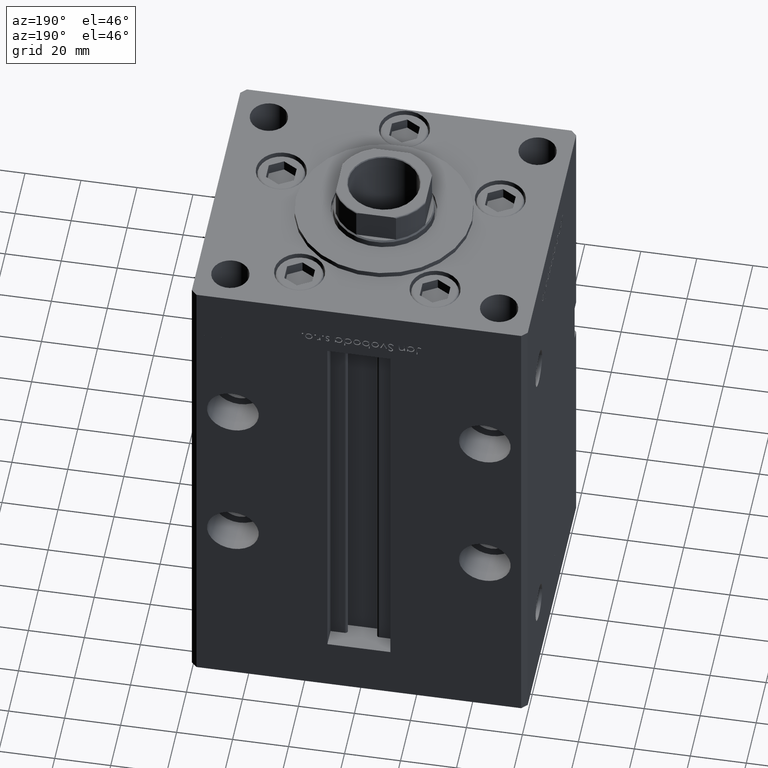
[diagram: clean part render]
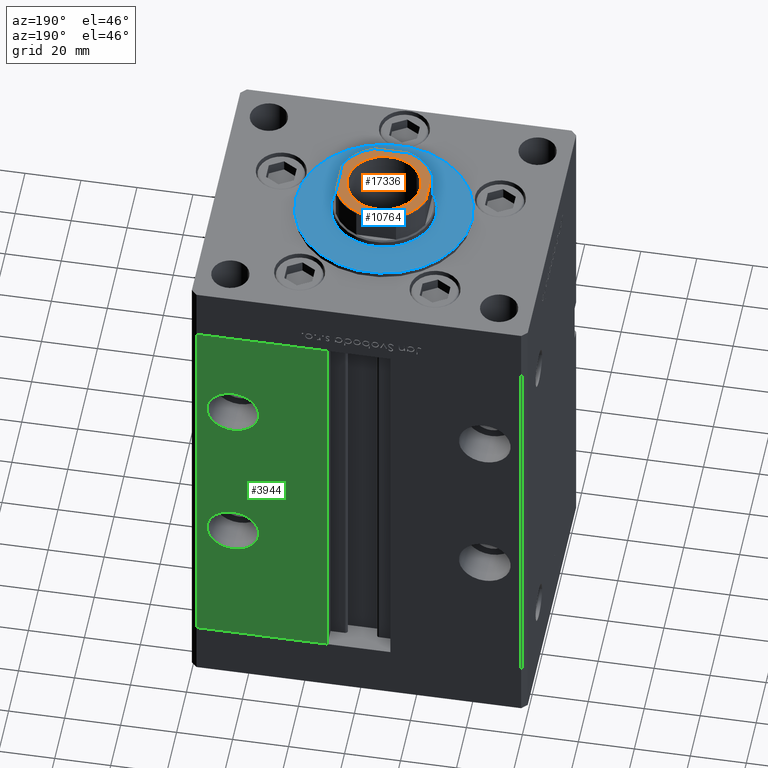
[diagram: same view with three faces highlighted in distinct colors, each labeled with its STEP entity id]
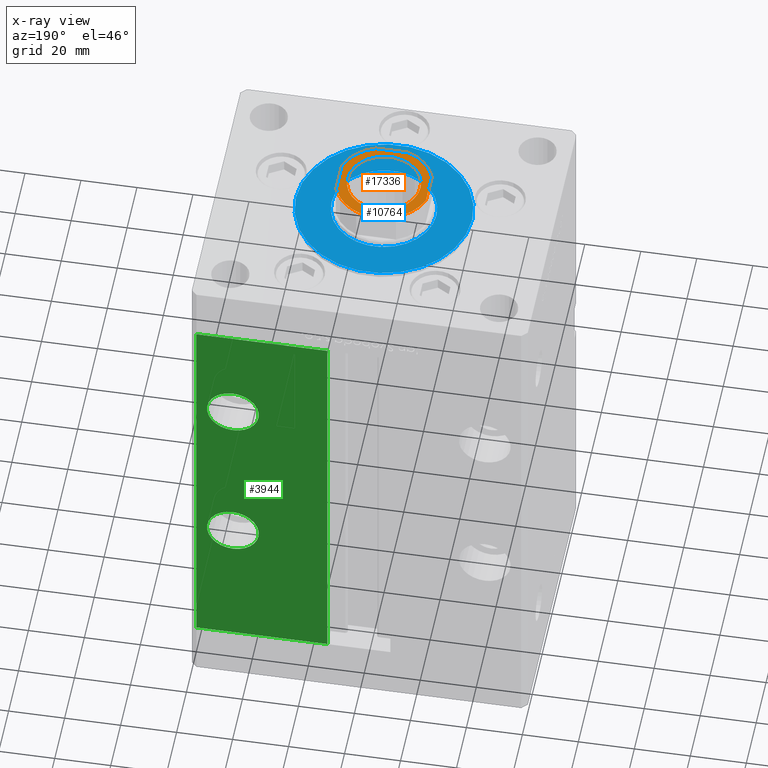
[diagram: x-ray of the same camera — body ghosted, the three highlighted faces saturated]
A machine part, auxiliary view with three faces highlighted in distinct colors.
The next image is the same camera in x-ray (body ghosted, the three faces saturated) — at least one of them is partly hidden behind the body in this view.
Their STEP definitions:

[orange] entity #17336 — the highlighted planar face has unit normal (0, 0, 1).
#196 = CIRCLE ( 'NONE', #37033, 17.00000000000000000 ) ;
#540 = CARTESIAN_POINT ( 'NONE',  ( 5.744562646538033057, 16.00000000000000000, 169.2500000000000000 ) ) ;
#622 = DIRECTION ( 'NONE',  ( 1.000000000000000000, 0.000000000000000000, 0.000000000000000000 ) ) ;
#655 = ORIENTED_EDGE ( 'NONE', *, *, #40840, .T. ) ;
#787 = DIRECTION ( 'NONE',  ( 1.000000000000000000, 0.000000000000000000, 0.000000000000000000 ) ) ;
#1505 = DIRECTION ( 'NONE',  ( 1.000000000000000000, 0.000000000000000000, 0.000000000000000000 ) ) ;
#2196 = ORIENTED_EDGE ( 'NONE', *, *, #26770, .T. ) ;
#2856 = DIRECTION ( 'NONE',  ( 0.000000000000000000, -0.000000000000000000, -1.000000000000000000 ) ) ;
#2902 = EDGE_CURVE ( 'NONE', #33235, #32653, #19603, .T. ) ;
#3002 = DIRECTION ( 'NONE',  ( -0.000000000000000000, 0.000000000000000000, 1.000000000000000000 ) ) ;
#3449 = CIRCLE ( 'NONE', #42868, 17.00000000000000000 ) ;
#4014 = DIRECTION ( 'NONE',  ( -1.000000000000000000, -1.084202172485504434E-16, -0.000000000000000000 ) ) ;
#4253 = CIRCLE ( 'NONE', #34254, 17.00000000000000000 ) ;
#5086 = VECTOR ( 'NONE', #13230, 1000.000000000000000 ) ;
#5416 = VERTEX_POINT ( 'NONE', #51565 ) ;
#7173 = DIRECTION ( 'NONE',  ( 1.084202172485504434E-16, -1.000000000000000000, 0.000000000000000000 ) ) ;
#7435 = EDGE_LOOP ( 'NONE', ( #47535, #46793, #11375, #43089, #49262, #48628, #2196, #18644 ) ) ;
#7758 = CARTESIAN_POINT ( 'NONE',  ( -16.00000000000000000, 15.99999999999999645, 169.2500000000000000 ) ) ;
#7982 = CIRCLE ( 'NONE', #18302, 13.05000000000003268 ) ;
#8025 = LINE ( 'NONE', #7758, #36845 ) ;
#8161 = EDGE_CURVE ( 'NONE', #32653, #45530, #24909, .T. ) ;
#8657 = CARTESIAN_POINT ( 'NONE',  ( -15.99999999999999645, -16.00000000000000355, 169.2500000000000000 ) ) ;
#9414 = CARTESIAN_POINT ( 'NONE',  ( 13.05000000000003268, 0.000000000000000000, 169.2500000000000000 ) ) ;
#9987 = CARTESIAN_POINT ( 'NONE',  ( 16.00000000000000355, -5.744562646538033057, 169.2500000000000000 ) ) ;
#10069 = DIRECTION ( 'NONE',  ( -0.000000000000000000, 0.000000000000000000, 1.000000000000000000 ) ) ;
#10673 = PLANE ( 'NONE',  #52886 ) ;
#11375 = ORIENTED_EDGE ( 'NONE', *, *, #25711, .T. ) ;
#13230 = DIRECTION ( 'NONE',  ( 1.000000000000000000, 1.084202172485504434E-16, 0.000000000000000000 ) ) ;
#15944 = VERTEX_POINT ( 'NONE', #16254 ) ;
#16254 = CARTESIAN_POINT ( 'NONE',  ( -16.00000000000000000, -5.744562646538033945, 169.2500000000000000 ) ) ;
#17336 = ADVANCED_FACE ( 'NONE', ( #34850, #26562 ), #10673, .T. ) ;
#17361 = CARTESIAN_POINT ( 'NONE',  ( 16.00000000000000000, 5.744562646538033945, 169.2500000000000000 ) ) ;
#17675 = CARTESIAN_POINT ( 'NONE',  ( 0.000000000000000000, 0.000000000000000000, 169.2500000000000000 ) ) ;
#18189 = VERTEX_POINT ( 'NONE', #9414 ) ;
#18302 = AXIS2_PLACEMENT_3D ( 'NONE', #39629, #2856, #39365 ) ;
#18401 = CARTESIAN_POINT ( 'NONE',  ( 0.000000000000000000, 0.000000000000000000, 169.2500000000000000 ) ) ;
#18644 = ORIENTED_EDGE ( 'NONE', *, *, #24979, .T. ) ;
#19603 = LINE ( 'NONE', #19869, #27323 ) ;
#19869 = CARTESIAN_POINT ( 'NONE',  ( 16.00000000000000000, 16.00000000000000000, 169.2500000000000000 ) ) ;
#20262 = EDGE_CURVE ( 'NONE', #33425, #18189, #52070, .T. ) ;
#21028 = CARTESIAN_POINT ( 'NONE',  ( 5.744562646538024175, -16.00000000000000355, 169.2500000000000000 ) ) ;
#21285 = CARTESIAN_POINT ( 'NONE',  ( 0.000000000000000000, 0.000000000000000000, 169.2500000000000000 ) ) ;
#22718 = CARTESIAN_POINT ( 'NONE',  ( 0.000000000000000000, 0.000000000000000000, 169.2500000000000000 ) ) ;
#22771 = VERTEX_POINT ( 'NONE', #51552 ) ;
#24909 = CIRCLE ( 'NONE', #41167, 17.00000000000000000 ) ;
#24979 = EDGE_CURVE ( 'NONE', #5416, #49732, #4253, .T. ) ;
#25711 = EDGE_CURVE ( 'NONE', #22771, #25732, #26148, .T. ) ;
#25732 = VERTEX_POINT ( 'NONE', #21028 ) ;
#25955 = ORIENTED_EDGE ( 'NONE', *, *, #20262, .T. ) ;
#26148 = LINE ( 'NONE', #8657, #5086 ) ;
#26562 = FACE_OUTER_BOUND ( 'NONE', #7435, .T. ) ;
#26770 = EDGE_CURVE ( 'NONE', #45530, #5416, #8025, .T. ) ;
#27078 = CARTESIAN_POINT ( 'NONE',  ( 0.000000000000000000, 0.000000000000000000, 169.2500000000000000 ) ) ;
#27323 = VECTOR ( 'NONE', #32482, 1000.000000000000000 ) ;
#27361 = EDGE_CURVE ( 'NONE', #15944, #22771, #3449, .T. ) ;
#27438 = CARTESIAN_POINT ( 'NONE',  ( 0.000000000000000000, 0.000000000000000000, 169.2500000000000000 ) ) ;
#28224 = DIRECTION ( 'NONE',  ( 1.000000000000000000, 0.000000000000000000, 0.000000000000000000 ) ) ;
#30571 = LINE ( 'NONE', #35634, #34451 ) ;
#32482 = DIRECTION ( 'NONE',  ( -1.084202172485504434E-16, 1.000000000000000000, -0.000000000000000000 ) ) ;
#32653 = VERTEX_POINT ( 'NONE', #17361 ) ;
#33235 = VERTEX_POINT ( 'NONE', #9987 ) ;
#33425 = VERTEX_POINT ( 'NONE', #46704 ) ;
#34254 = AXIS2_PLACEMENT_3D ( 'NONE', #27438, #3002, #28224 ) ;
#34451 = VECTOR ( 'NONE', #7173, 1000.000000000000000 ) ;
#34850 = FACE_BOUND ( 'NONE', #40784, .T. ) ;
#35634 = CARTESIAN_POINT ( 'NONE',  ( -16.00000000000000000, 15.99999999999999645, 169.2500000000000000 ) ) ;
#36845 = VECTOR ( 'NONE', #4014, 1000.000000000000000 ) ;
#37033 = AXIS2_PLACEMENT_3D ( 'NONE', #17675, #46399, #787 ) ;
#37403 = EDGE_CURVE ( 'NONE', #25732, #33235, #196, .T. ) ;
#39365 = DIRECTION ( 'NONE',  ( 1.000000000000000000, 0.000000000000000000, 0.000000000000000000 ) ) ;
#39629 = CARTESIAN_POINT ( 'NONE',  ( 0.000000000000000000, 0.000000000000000000, 169.2500000000000000 ) ) ;
#40784 = EDGE_LOOP ( 'NONE', ( #655, #25955 ) ) ;
#40840 = EDGE_CURVE ( 'NONE', #18189, #33425, #7982, .T. ) ;
#41150 = DIRECTION ( 'NONE',  ( 0.000000000000000000, -0.000000000000000000, -1.000000000000000000 ) ) ;
#41167 = AXIS2_PLACEMENT_3D ( 'NONE', #18401, #42823, #1505 ) ;
#42823 = DIRECTION ( 'NONE',  ( -0.000000000000000000, 0.000000000000000000, 1.000000000000000000 ) ) ;
#42868 = AXIS2_PLACEMENT_3D ( 'NONE', #22718, #10069, #43091 ) ;
#43089 = ORIENTED_EDGE ( 'NONE', *, *, #37403, .T. ) ;
#43091 = DIRECTION ( 'NONE',  ( 1.000000000000000000, 0.000000000000000000, 0.000000000000000000 ) ) ;
#43416 = DIRECTION ( 'NONE',  ( -0.000000000000000000, 0.000000000000000000, 1.000000000000000000 ) ) ;
#44365 = AXIS2_PLACEMENT_3D ( 'NONE', #21285, #41150, #622 ) ;
#45530 = VERTEX_POINT ( 'NONE', #540 ) ;
#45718 = CARTESIAN_POINT ( 'NONE',  ( -16.00000000000000000, 5.744562646538029504, 169.2500000000000000 ) ) ;
#46399 = DIRECTION ( 'NONE',  ( -0.000000000000000000, 0.000000000000000000, 1.000000000000000000 ) ) ;
#46704 = CARTESIAN_POINT ( 'NONE',  ( -13.05000000000003268, 1.598164072887299324E-15, 169.2500000000000000 ) ) ;
#46793 = ORIENTED_EDGE ( 'NONE', *, *, #27361, .T. ) ;
#47535 = ORIENTED_EDGE ( 'NONE', *, *, #49223, .T. ) ;
#48628 = ORIENTED_EDGE ( 'NONE', *, *, #8161, .T. ) ;
#49223 = EDGE_CURVE ( 'NONE', #49732, #15944, #30571, .T. ) ;
#49262 = ORIENTED_EDGE ( 'NONE', *, *, #2902, .T. ) ;
#49732 = VERTEX_POINT ( 'NONE', #45718 ) ;
#50963 = DIRECTION ( 'NONE',  ( 1.000000000000000000, 0.000000000000000000, 0.000000000000000000 ) ) ;
#51552 = CARTESIAN_POINT ( 'NONE',  ( -5.744562646538029504, -16.00000000000000355, 169.2500000000000000 ) ) ;
#51565 = CARTESIAN_POINT ( 'NONE',  ( -5.744562646538033945, 16.00000000000000000, 169.2500000000000000 ) ) ;
#52070 = CIRCLE ( 'NONE', #44365, 13.05000000000003268 ) ;
#52886 = AXIS2_PLACEMENT_3D ( 'NONE', #27078, #43416, #50963 ) ;

[blue] entity #10764 — the highlighted planar face has unit normal (0, 0, 1).
#52 = CIRCLE ( 'NONE', #8600, 31.50000000000000000 ) ;
#317 = PLANE ( 'NONE',  #49929 ) ;
#2436 = CARTESIAN_POINT ( 'NONE',  ( 0.000000000000000000, -6.938893903907228378E-15, 2.000000000000000000 ) ) ;
#2610 = CARTESIAN_POINT ( 'NONE',  ( -31.50000000000000000, -6.938893903907228378E-15, 2.000000000000000000 ) ) ;
#5109 = FACE_OUTER_BOUND ( 'NONE', #34257, .T. ) ;
#7429 = EDGE_CURVE ( 'NONE', #14425, #29565, #35162, .T. ) ;
#8600 = AXIS2_PLACEMENT_3D ( 'NONE', #2436, #35440, #48589 ) ;
#9121 = DIRECTION ( 'NONE',  ( 0.000000000000000000, 0.000000000000000000, 1.000000000000000000 ) ) ;
#10667 = DIRECTION ( 'NONE',  ( 0.000000000000000000, 0.000000000000000000, 1.000000000000000000 ) ) ;
#10764 = ADVANCED_FACE ( 'NONE', ( #41094, #5109 ), #317, .T. ) ;
#11059 = VERTEX_POINT ( 'NONE', #15278 ) ;
#14425 = VERTEX_POINT ( 'NONE', #25942 ) ;
#15278 = CARTESIAN_POINT ( 'NONE',  ( 31.50000000000000000, -3.081256486593065689E-15, 2.000000000000000000 ) ) ;
#16905 = DIRECTION ( 'NONE',  ( 1.000000000000000000, 0.000000000000000000, -0.000000000000000000 ) ) ;
#17175 = CARTESIAN_POINT ( 'NONE',  ( 0.000000000000000000, -6.938893903907228378E-15, 2.000000000000000000 ) ) ;
#20240 = CARTESIAN_POINT ( 'NONE',  ( 0.000000000000000000, -6.938893903907228378E-15, 2.000000000000000000 ) ) ;
#21080 = AXIS2_PLACEMENT_3D ( 'NONE', #52273, #10667, #47715 ) ;
#22546 = DIRECTION ( 'NONE',  ( 1.000000000000000000, 0.000000000000000000, 0.000000000000000000 ) ) ;
#24555 = DIRECTION ( 'NONE',  ( 0.000000000000000000, 0.000000000000000000, 1.000000000000000000 ) ) ;
#25942 = CARTESIAN_POINT ( 'NONE',  ( 18.75000000000000355, -6.938893903907228378E-15, 2.000000000000000000 ) ) ;
#26118 = CIRCLE ( 'NONE', #38964, 18.75000000000000355 ) ;
#27766 = EDGE_CURVE ( 'NONE', #36395, #11059, #52, .T. ) ;
#28821 = EDGE_LOOP ( 'NONE', ( #42451, #44159 ) ) ;
#29565 = VERTEX_POINT ( 'NONE', #30178 ) ;
#30178 = CARTESIAN_POINT ( 'NONE',  ( -18.75000000000000355, -4.642681155505941194E-15, 2.000000000000000000 ) ) ;
#32583 = DIRECTION ( 'NONE',  ( 1.000000000000000000, 0.000000000000000000, 0.000000000000000000 ) ) ;
#34257 = EDGE_LOOP ( 'NONE', ( #42550, #39884 ) ) ;
#35162 = CIRCLE ( 'NONE', #51452, 18.75000000000000355 ) ;
#35440 = DIRECTION ( 'NONE',  ( 0.000000000000000000, 0.000000000000000000, 1.000000000000000000 ) ) ;
#36395 = VERTEX_POINT ( 'NONE', #2610 ) ;
#38373 = CARTESIAN_POINT ( 'NONE',  ( 0.000000000000000000, -6.938893903907228378E-15, 2.000000000000000000 ) ) ;
#38964 = AXIS2_PLACEMENT_3D ( 'NONE', #20240, #24555, #32583 ) ;
#39884 = ORIENTED_EDGE ( 'NONE', *, *, #44198, .T. ) ;
#41094 = FACE_BOUND ( 'NONE', #28821, .T. ) ;
#42451 = ORIENTED_EDGE ( 'NONE', *, *, #7429, .F. ) ;
#42550 = ORIENTED_EDGE ( 'NONE', *, *, #27766, .T. ) ;
#43258 = EDGE_CURVE ( 'NONE', #29565, #14425, #26118, .T. ) ;
#44159 = ORIENTED_EDGE ( 'NONE', *, *, #43258, .F. ) ;
#44198 = EDGE_CURVE ( 'NONE', #11059, #36395, #52814, .T. ) ;
#46687 = DIRECTION ( 'NONE',  ( 0.000000000000000000, 0.000000000000000000, 1.000000000000000000 ) ) ;
#47715 = DIRECTION ( 'NONE',  ( 1.000000000000000000, 0.000000000000000000, 0.000000000000000000 ) ) ;
#48589 = DIRECTION ( 'NONE',  ( 1.000000000000000000, 0.000000000000000000, 0.000000000000000000 ) ) ;
#49929 = AXIS2_PLACEMENT_3D ( 'NONE', #17175, #9121, #16905 ) ;
#51452 = AXIS2_PLACEMENT_3D ( 'NONE', #38373, #46687, #22546 ) ;
#52273 = CARTESIAN_POINT ( 'NONE',  ( 0.000000000000000000, -6.938893903907228378E-15, 2.000000000000000000 ) ) ;
#52814 = CIRCLE ( 'NONE', #21080, 31.50000000000000000 ) ;

[green] entity #3944 — the highlighted planar face has unit normal (0, -1, 0).
#145 = DIRECTION ( 'NONE',  ( 0.000000000000000000, 0.000000000000000000, -1.000000000000000000 ) ) ;
#646 = EDGE_CURVE ( 'NONE', #46595, #16453, #50763, .T. ) ;
#1914 = DIRECTION ( 'NONE',  ( -1.000000000000000000, 0.000000000000000000, 0.000000000000000000 ) ) ;
#2170 = EDGE_LOOP ( 'NONE', ( #47960, #40670, #41238, #30636 ) ) ;
#2408 = VERTEX_POINT ( 'NONE', #43827 ) ;
#3444 = CARTESIAN_POINT ( 'NONE',  ( -11.24999999999999822, 51.00000000000000711, 148.5000000000000000 ) ) ;
#3737 = DIRECTION ( 'NONE',  ( -0.000000000000000000, -0.000000000000000000, 1.000000000000000000 ) ) ;
#3944 = ADVANCED_FACE ( 'NONE', ( #11754, #24131, #32422 ), #28674, .F. ) ;
#4507 = CARTESIAN_POINT ( 'NONE',  ( 45.00000000000000000, 51.00000000000000711, 111.5000000000000000 ) ) ;
#4919 = VECTOR ( 'NONE', #1914, 1000.000000000000000 ) ;
#5947 = EDGE_LOOP ( 'NONE', ( #7159, #34780 ) ) ;
#6716 = DIRECTION ( 'NONE',  ( 0.000000000000000000, 1.000000000000000000, 0.000000000000000000 ) ) ;
#7159 = ORIENTED_EDGE ( 'NONE', *, *, #18282, .F. ) ;
#7417 = DIRECTION ( 'NONE',  ( 0.000000000000000000, 1.000000000000000000, -0.000000000000000000 ) ) ;
#7640 = VERTEX_POINT ( 'NONE', #16823 ) ;
#7922 = CARTESIAN_POINT ( 'NONE',  ( 57.99999999999999289, 51.00000000000000711, 148.5000000000000000 ) ) ;
#10660 = DIRECTION ( 'NONE',  ( 0.000000000000000000, 0.000000000000000000, -1.000000000000000000 ) ) ;
#11368 = VECTOR ( 'NONE', #3737, 1000.000000000000000 ) ;
#11754 = FACE_BOUND ( 'NONE', #41360, .T. ) ;
#13090 = DIRECTION ( 'NONE',  ( 0.000000000000000000, 1.000000000000000000, 0.000000000000000000 ) ) ;
#13252 = EDGE_CURVE ( 'NONE', #34036, #7640, #28741, .T. ) ;
#14787 = CARTESIAN_POINT ( 'NONE',  ( 45.00000000000000000, 51.00000000000000711, 111.5000000000000000 ) ) ;
#15428 = ORIENTED_EDGE ( 'NONE', *, *, #22007, .F. ) ;
#15768 = DIRECTION ( 'NONE',  ( -0.000000000000000000, -0.000000000000000000, -1.000000000000000000 ) ) ;
#16453 = VERTEX_POINT ( 'NONE', #31401 ) ;
#16823 = CARTESIAN_POINT ( 'NONE',  ( 45.00000000000000000, 51.00000000000000711, 120.7500000000000000 ) ) ;
#17727 = AXIS2_PLACEMENT_3D ( 'NONE', #14787, #6716, #31160 ) ;
#17895 = AXIS2_PLACEMENT_3D ( 'NONE', #3444, #39955, #40483 ) ;
#18282 = EDGE_CURVE ( 'NONE', #7640, #34036, #27227, .T. ) ;
#19151 = VERTEX_POINT ( 'NONE', #7922 ) ;
#19914 = CIRCLE ( 'NONE', #26802, 9.250000000000001776 ) ;
#20453 = AXIS2_PLACEMENT_3D ( 'NONE', #23030, #7417, #10660 ) ;
#21444 = VERTEX_POINT ( 'NONE', #48426 ) ;
#22007 = EDGE_CURVE ( 'NONE', #2408, #28177, #43601, .T. ) ;
#23030 = CARTESIAN_POINT ( 'NONE',  ( 45.00000000000000000, 51.00000000000000711, 51.50000000000000000 ) ) ;
#23268 = VECTOR ( 'NONE', #51008, 1000.000000000000000 ) ;
#23883 = LINE ( 'NONE', #32713, #11368 ) ;
#24131 = FACE_BOUND ( 'NONE', #5947, .T. ) ;
#24938 = CARTESIAN_POINT ( 'NONE',  ( 57.99999999999999289, 51.00000000000000711, 0.000000000000000000 ) ) ;
#26607 = CARTESIAN_POINT ( 'NONE',  ( -11.24999999999999822, 51.00000000000000711, 148.5000000000000000 ) ) ;
#26802 = AXIS2_PLACEMENT_3D ( 'NONE', #33397, #50043, #145 ) ;
#27227 = CIRCLE ( 'NONE', #17727, 9.249999999999994671 ) ;
#28177 = VERTEX_POINT ( 'NONE', #38279 ) ;
#28674 = PLANE ( 'NONE',  #17895 ) ;
#28741 = CIRCLE ( 'NONE', #30479, 9.249999999999994671 ) ;
#28823 = VECTOR ( 'NONE', #15768, 1000.000000000000000 ) ;
#30479 = AXIS2_PLACEMENT_3D ( 'NONE', #4507, #13090, #49864 ) ;
#30636 = ORIENTED_EDGE ( 'NONE', *, *, #44877, .T. ) ;
#31158 = CARTESIAN_POINT ( 'NONE',  ( -11.24999999999999822, 51.00000000000000711, 0.000000000000000000 ) ) ;
#31160 = DIRECTION ( 'NONE',  ( 0.000000000000000000, 0.000000000000000000, 1.000000000000000000 ) ) ;
#31401 = CARTESIAN_POINT ( 'NONE',  ( 11.24999999999999822, 51.00000000000000711, 0.000000000000000000 ) ) ;
#31604 = CARTESIAN_POINT ( 'NONE',  ( 57.99999999999999289, 51.00000000000000711, 148.5000000000000000 ) ) ;
#32422 = FACE_OUTER_BOUND ( 'NONE', #2170, .T. ) ;
#32713 = CARTESIAN_POINT ( 'NONE',  ( 11.24999999999999822, 51.00000000000000711, 0.000000000000000000 ) ) ;
#33397 = CARTESIAN_POINT ( 'NONE',  ( 45.00000000000000000, 51.00000000000000711, 51.50000000000000000 ) ) ;
#34036 = VERTEX_POINT ( 'NONE', #46507 ) ;
#34636 = LINE ( 'NONE', #26607, #23268 ) ;
#34780 = ORIENTED_EDGE ( 'NONE', *, *, #13252, .F. ) ;
#37989 = EDGE_CURVE ( 'NONE', #28177, #2408, #19914, .T. ) ;
#38279 = CARTESIAN_POINT ( 'NONE',  ( 45.00000000000000000, 51.00000000000000711, 60.75000000000000000 ) ) ;
#39955 = DIRECTION ( 'NONE',  ( 0.000000000000000000, -1.000000000000000000, 0.000000000000000000 ) ) ;
#40483 = DIRECTION ( 'NONE',  ( 0.000000000000000000, -0.000000000000000000, -1.000000000000000000 ) ) ;
#40670 = ORIENTED_EDGE ( 'NONE', *, *, #47524, .T. ) ;
#41238 = ORIENTED_EDGE ( 'NONE', *, *, #47451, .T. ) ;
#41360 = EDGE_LOOP ( 'NONE', ( #52933, #15428 ) ) ;
#43601 = CIRCLE ( 'NONE', #20453, 9.250000000000001776 ) ;
#43827 = CARTESIAN_POINT ( 'NONE',  ( 45.00000000000000000, 51.00000000000000711, 42.24999999999999289 ) ) ;
#44877 = EDGE_CURVE ( 'NONE', #19151, #46595, #52547, .T. ) ;
#46507 = CARTESIAN_POINT ( 'NONE',  ( 45.00000000000000000, 51.00000000000000711, 102.2500000000000142 ) ) ;
#46595 = VERTEX_POINT ( 'NONE', #24938 ) ;
#47451 = EDGE_CURVE ( 'NONE', #21444, #19151, #34636, .T. ) ;
#47524 = EDGE_CURVE ( 'NONE', #16453, #21444, #23883, .T. ) ;
#47960 = ORIENTED_EDGE ( 'NONE', *, *, #646, .T. ) ;
#48426 = CARTESIAN_POINT ( 'NONE',  ( 11.24999999999999112, 51.00000000000000711, 148.5000000000000000 ) ) ;
#49864 = DIRECTION ( 'NONE',  ( 0.000000000000000000, 0.000000000000000000, 1.000000000000000000 ) ) ;
#50043 = DIRECTION ( 'NONE',  ( 0.000000000000000000, 1.000000000000000000, -0.000000000000000000 ) ) ;
#50763 = LINE ( 'NONE', #31158, #4919 ) ;
#51008 = DIRECTION ( 'NONE',  ( 1.000000000000000000, 0.000000000000000000, 0.000000000000000000 ) ) ;
#52547 = LINE ( 'NONE', #31604, #28823 ) ;
#52933 = ORIENTED_EDGE ( 'NONE', *, *, #37989, .F. ) ;